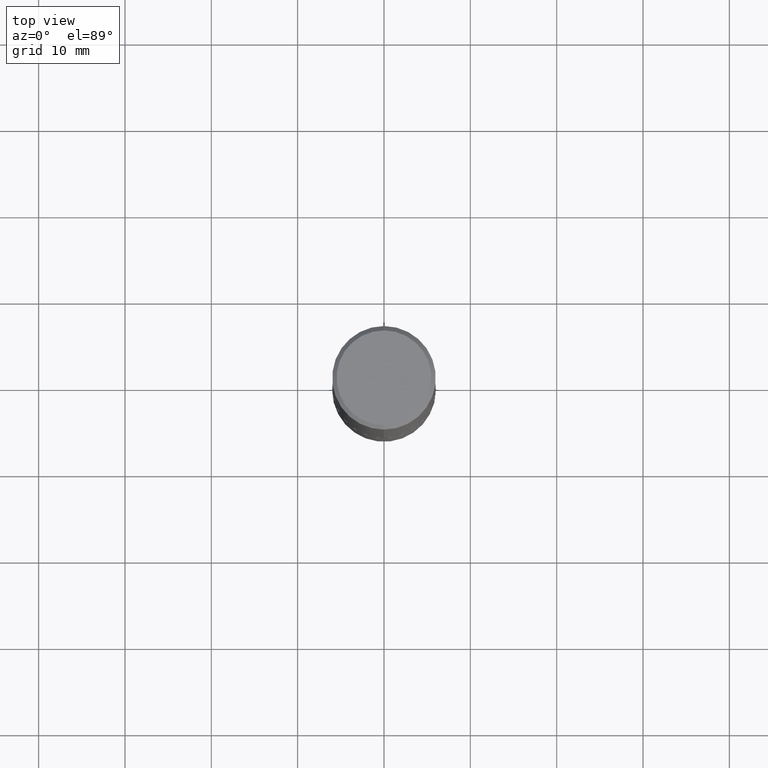
[diagram: clean part render]
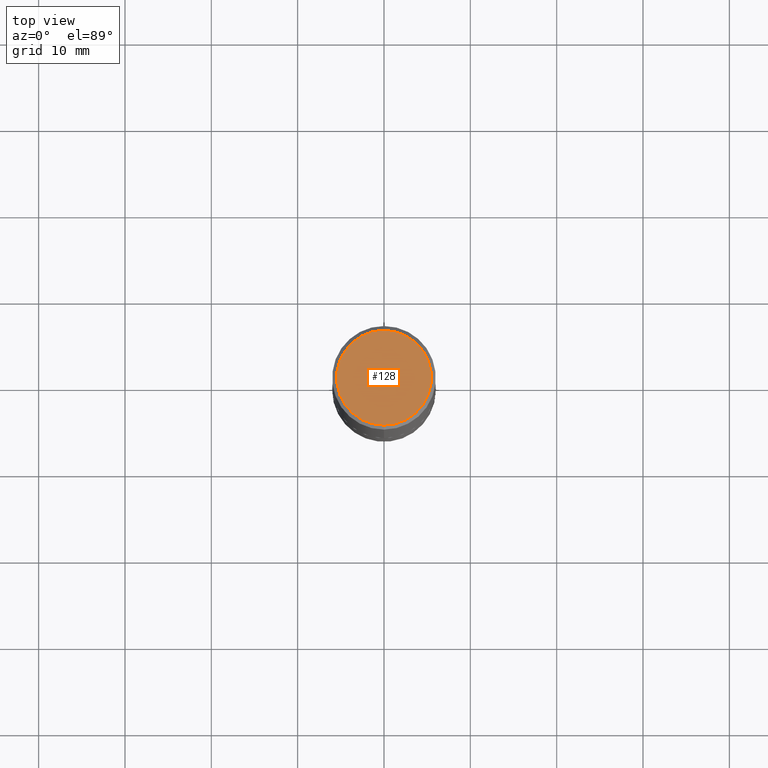
[diagram: same view with one face highlighted and labeled with its STEP entity id]
A machine part, top view. The second image highlights one B-rep face of the part: STEP entity #128.
In plain terms, the highlighted planar face has unit normal (0, -0, -1).
Its self-contained STEP definition (entity closure, byte-faithful):
#3 = EDGE_LOOP ( 'NONE', ( #93, #60 ) ) ;
#7 = DIRECTION ( 'NONE',  ( -2.450099953360415403E-29, 3.484849272499618930E-15, 1.000000000000000000 ) ) ;
#17 = EDGE_CURVE ( 'NONE', #105, #65, #291, .T. ) ;
#58 = CARTESIAN_POINT ( 'NONE',  ( -2.474856915300181060E-45, 3.520061828088122209E-31, 1.010104470189393763E-16 ) ) ;
#60 = ORIENTED_EDGE ( 'NONE', *, *, #17, .T. ) ;
#65 = VERTEX_POINT ( 'NONE', #130 ) ;
#76 = CARTESIAN_POINT ( 'NONE',  ( -2.474856915300181060E-45, 3.520061828088122209E-31, 1.010104470189393763E-16 ) ) ;
#93 = ORIENTED_EDGE ( 'NONE', *, *, #336, .T. ) ;
#102 = DIRECTION ( 'NONE',  ( -6.982962677686265922E-15, -1.000000000000000000, 3.484849272499618535E-15 ) ) ;
#105 = VERTEX_POINT ( 'NONE', #352 ) ;
#128 = ADVANCED_FACE ( 'NONE', ( #322 ), #359, .F. ) ;
#130 = CARTESIAN_POINT ( 'NONE',  ( 1.579546157692633424E-15, 0.2161999999999999478, -6.524139656954780766E-16 ) ) ;
#135 = AXIS2_PLACEMENT_3D ( 'NONE', #142, #367, #236 ) ;
#142 = CARTESIAN_POINT ( 'NONE',  ( 1.509716530915770323E-15, 0.2161999999999999478, -7.029191892049475614E-16 ) ) ;
#157 = DIRECTION ( 'NONE',  ( -2.450099953360415403E-29, 3.484849272499618930E-15, 1.000000000000000000 ) ) ;
#209 = AXIS2_PLACEMENT_3D ( 'NONE', #58, #157, #217 ) ;
#217 = DIRECTION ( 'NONE',  ( -6.982962677686265922E-15, -1.000000000000000000, 3.484849272499618535E-15 ) ) ;
#236 = DIRECTION ( 'NONE',  ( 6.982962677686265922E-15, 1.000000000000000000, -3.484849272499618930E-15 ) ) ;
#291 = CIRCLE ( 'NONE', #344, 0.2161999999999999478 ) ;
#322 = FACE_OUTER_BOUND ( 'NONE', #3, .T. ) ;
#330 = CIRCLE ( 'NONE', #209, 0.2161999999999999478 ) ;
#336 = EDGE_CURVE ( 'NONE', #65, #105, #330, .T. ) ;
#344 = AXIS2_PLACEMENT_3D ( 'NONE', #76, #7, #102 ) ;
#352 = CARTESIAN_POINT ( 'NONE',  ( -1.551844647095919747E-15, -0.2161999999999999478, 8.544348597333568046E-16 ) ) ;
#359 = PLANE ( 'NONE',  #135 ) ;
#367 = DIRECTION ( 'NONE',  ( 2.450099953360414843E-29, -3.484849272499618930E-15, -1.000000000000000000 ) ) ;